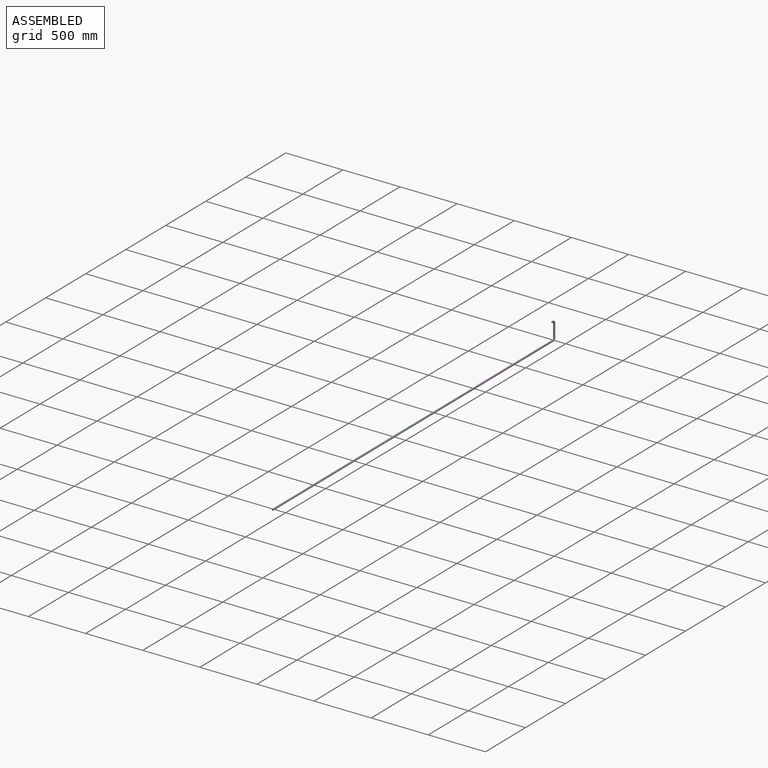
[diagram: assembled view]
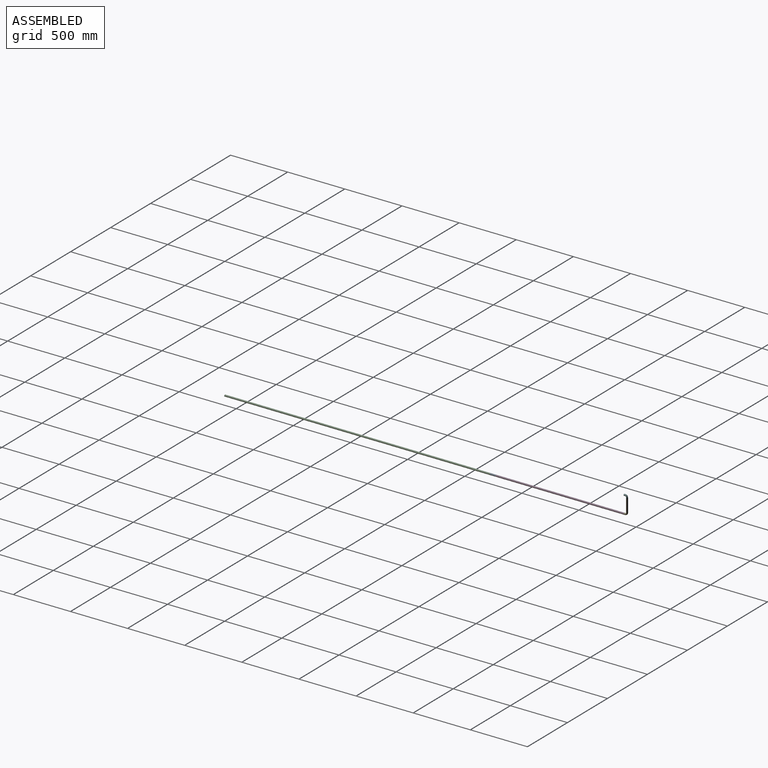
[diagram: assembled view, second angle]
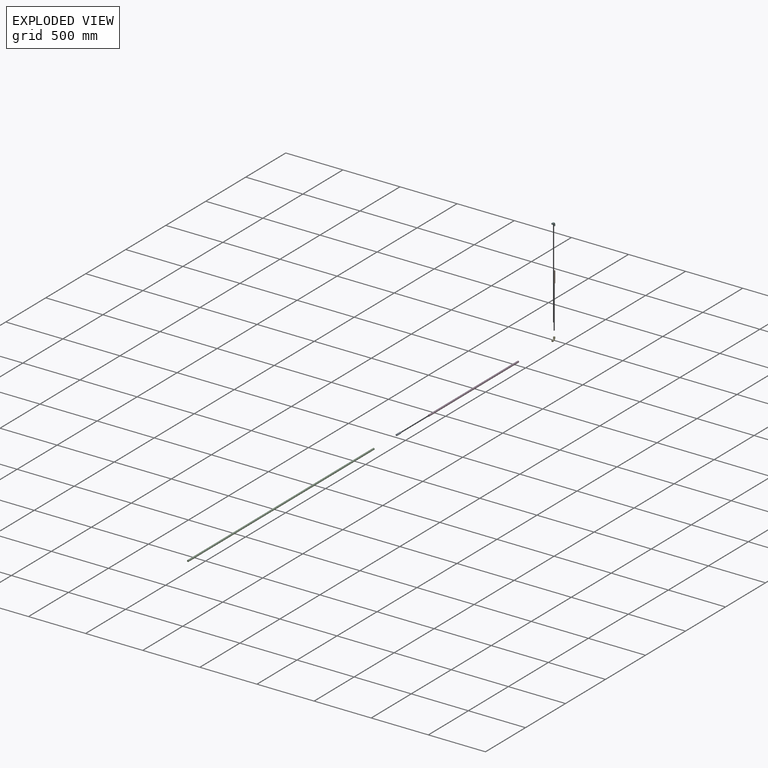
[diagram: exploded view]
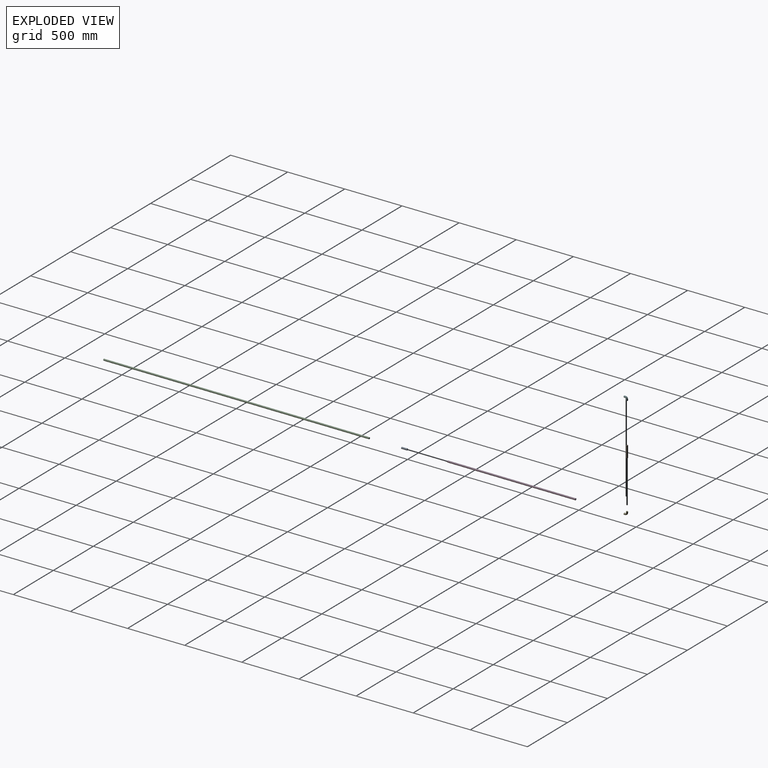
[diagram: exploded view, second angle]
ASSEMBLY  parts=6 mates=5
PART A: 3 faces, bbox 15x50x15 mm
  f0: cylinder r=7.5mm len=50mm, axis (0,1,0), area 2356.2mm2, adj f1,f2
  f1: plane 15x15mm, normal (0,-1,0), area 176.7mm2, adj f0
  f2: plane 15x15mm, normal (0,1,0), area 176.7mm2, adj f0
PART B: 3 faces, bbox 15x100x15 mm
  f0: cylinder r=7.5mm len=100mm, axis (0,1,0), area 4712.4mm2, adj f1,f2
  f1: plane 15x15mm, normal (0,-1,0), area 176.7mm2, adj f0
  f2: plane 15x15mm, normal (0,1,0), area 176.7mm2, adj f0
PART C: 3 faces, bbox 15x2325x15 mm
  f0: cylinder r=7.5mm len=2325mm, axis (0,1,0), area 109563mm2, adj f1,f2
  f1: plane 15x15mm, normal (0,-1,0), area 176.7mm2, adj f0
  f2: plane 15x15mm, normal (0,1,0), area 176.7mm2, adj f0
PART D: 3 faces, bbox 15x1120x15 mm
  f0: cylinder r=7.5mm len=1120mm, axis (0,1,0), area 52778.8mm2, adj f1,f2
  f1: plane 15x15mm, normal (0,-1,0), area 176.7mm2, adj f0
  f2: plane 15x15mm, normal (0,1,0), area 176.7mm2, adj f0
PART E: 5 faces, bbox 34.4x34.4x15 mm
  f0: plane 15x15mm, normal (0,-1,0), area 176.7mm2, adj f2
  f1: plane 15x15mm, normal (1,0,0), area 176.7mm2, adj f4
  f2: cylinder r=7.5mm len=15mm, axis (0,1,0), area 471.2mm2, adj f0,f3
  f3: torus R=15mm, axis (0,0,-1), area 1110.3mm2, adj f2,f4
  f4: cylinder r=7.5mm len=15mm, axis (1,0,0), area 471.2mm2, adj f1,f3
PART F: same geometry as E
PLACE A t=(11470,-2245,-75)mm
PLACE B rot(axis=(1,0,0),90deg) t=(11470,-1100,50)mm
PLACE C t=(11470,-2295,-75)mm
PLACE D t=(11470,-1125,-75)mm
PLACE E rot(axis=(0,-1,0),90deg) t=(11470,-1125,-75)mm
PLACE F rot(axis=(0,1,0),90deg) t=(11470,-1125,75)mm
MATE revolute F.f4 <-> B.f0  axis (0,0,-1) through (11470,-1100,50)mm
MATE revolute E.f2 <-> D.f0  axis (0,-1,0) through (11470,-1125,-75)mm
MATE revolute B.f0 <-> E.f4  axis (0,0,-1) through (11470,-1100,-50)mm
MATE revolute D.f0 <-> A.f0  axis (0,-1,0) through (11470,-2245,-75)mm
MATE revolute A.f0 <-> C.f0  axis (0,-1,0) through (11470,-2295,-75)mm
